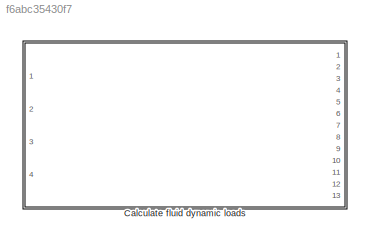
MODEL slx_f6abc35430f7
KIND library
CONFIG AbsTol = auto
CONFIG EnableMultiTasking = off
CONFIG FixedStep = auto
CONFIG MaxStep = auto
CONFIG MinStep = auto
CONFIG RelTol = 1e-3
CONFIG SampleTimeConstraint = Unconstrained
CONFIG Solver = VariableStepAuto
CONFIG SolverName = VariableStepAuto
CONFIG StartTime = 0.0
CONFIG StopTime = 10.0
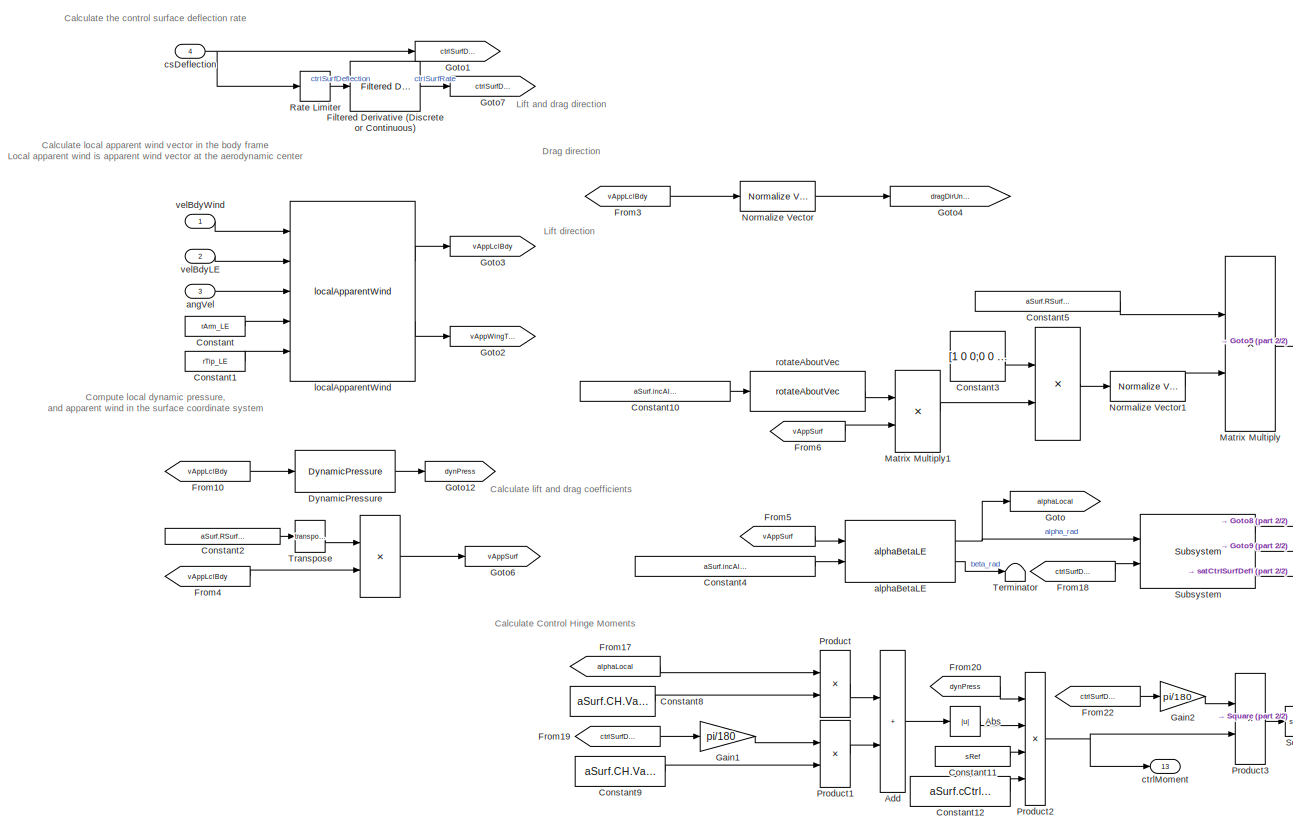
[diagram: Calculate fluid dynamic loads - part 1/2, center side, full height]
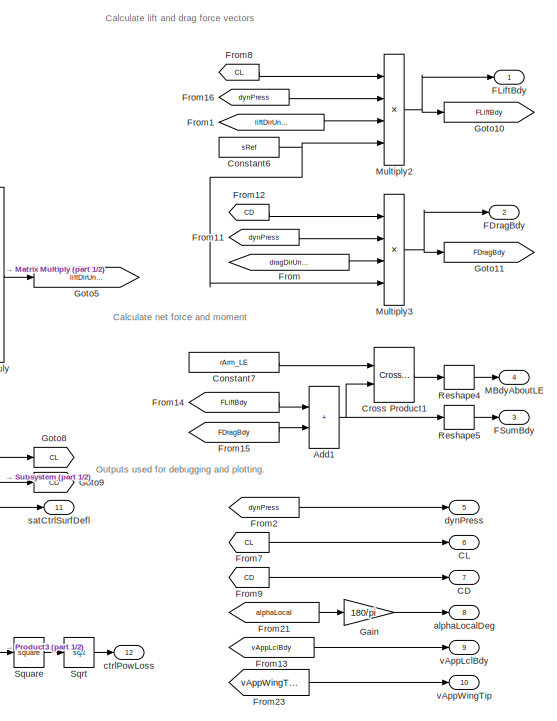
[diagram: Calculate fluid dynamic loads - part 2/2, right side, full height]
BLOCK [SubSystem] Calculate fluid dynamic loads
  Ports = [4, 13]
  RequestExecContextInheritance = off
BLOCK [Product] Calculate fluid dynamic loads/ 
  Multiplication = Matrix(*)
  Ports = [2, 1]
BLOCK [Product] Calculate fluid dynamic loads/  
  Multiplication = Matrix(*)
  Ports = [2, 1]
BLOCK [Abs] Calculate fluid dynamic loads/Abs
  SaturateOnIntegerOverflow = off
BLOCK [Sum] Calculate fluid dynamic loads/Add
  IconShape = rectangular
  Ports = [2, 1]
BLOCK [Sum] Calculate fluid dynamic loads/Add1
  IconShape = rectangular
  Ports = [2, 1]
BLOCK [Outport] Calculate fluid dynamic loads/CD
  Port = 7
  VectorParamsAs1DForOutWhenUnconnected = off
BLOCK [Outport] Calculate fluid dynamic loads/CL
  Port = 6
  VectorParamsAs1DForOutWhenUnconnected = off
BLOCK [Constant] Calculate fluid dynamic loads/Constant
  Value = rArm_LE
  VectorParams1D = off
BLOCK [Constant] Calculate fluid dynamic loads/Constant1
  Value = rTip_LE
  VectorParams1D = off
BLOCK [Constant] Calculate fluid dynamic loads/Constant10
  Value = aSurf.incAlphaUnitVecSurf.Value
  VectorParams1D = off
BLOCK [Constant] Calculate fluid dynamic loads/Constant11
  Value = sRef
BLOCK [Constant] Calculate fluid dynamic loads/Constant12
  Value = aSurf.cCtrlSurf.Value
BLOCK [Constant] Calculate fluid dynamic loads/Constant2
  Value = aSurf.RSurf2Bdy.Value
  VectorParams1D = off
BLOCK [Constant] Calculate fluid dynamic loads/Constant3
  Value = [1 0 0;0 0 0;0 0 1]
  VectorParams1D = off
BLOCK [Constant] Calculate fluid dynamic loads/Constant4
  Value = aSurf.incAlphaUnitVecSurf.Value
  VectorParams1D = off
BLOCK [Constant] Calculate fluid dynamic loads/Constant5
  Value = aSurf.RSurf2Bdy.Value
  VectorParams1D = off
BLOCK [Constant] Calculate fluid dynamic loads/Constant6
  Value = sRef
BLOCK [Constant] Calculate fluid dynamic loads/Constant7
  Value = rArm_LE
  VectorParams1D = off
BLOCK [Constant] Calculate fluid dynamic loads/Constant8
  Value = aSurf.CH.Value(1)
BLOCK [Constant] Calculate fluid dynamic loads/Constant9
  Value = aSurf.CH.Value(2)
BLOCK [Reference] Calculate fluid dynamic loads/Cross Product1  REF=vrlib/Utilities/Cross Product
  Ports = [2, 1]
  SourceBlock = vrlib/Utilities/Cross Product
  SourceProductBaseCode = SL
  SourceType = Cross Product
BLOCK [Reference] Calculate fluid dynamic loads/DynamicPressure  REF=dynamicPressure_ul/DynamicPressure
  Ports = [1, 1]
  SourceBlock = dynamicPressure_ul/DynamicPressure
BLOCK [Outport] Calculate fluid dynamic loads/FDragBdy
  Port = 2
  VectorParamsAs1DForOutWhenUnconnected = off
BLOCK [Outport] Calculate fluid dynamic loads/FLiftBdy
  VectorParamsAs1DForOutWhenUnconnected = off
BLOCK [Outport] Calculate fluid dynamic loads/FSumBdy
  Port = 3
  VectorParamsAs1DForOutWhenUnconnected = off
BLOCK [Reference] Calculate fluid dynamic loads/Filtered Derivative (Discrete or Continuous)  REF=eeGeneralControl/Filtered Derivative
(Discrete or Continuous)
  Ports = [1, 1]
  SourceBlock = eeGeneralControl/Filtered Derivative\n(Discrete or Continuous)
  SourceProductBaseCode = PS
  SourceType = Filtered Derivative (Discrete or Continuous)
BLOCK [From] Calculate fluid dynamic loads/From
  GotoTag = dragDirUnitVecBdy
BLOCK [From] Calculate fluid dynamic loads/From1
  GotoTag = liftDirUnitVecBdy
BLOCK [From] Calculate fluid dynamic loads/From10
  GotoTag = vAppLclBdy
BLOCK [From] Calculate fluid dynamic loads/From11
  GotoTag = dynPress
BLOCK [From] Calculate fluid dynamic loads/From12
  GotoTag = CD
BLOCK [From] Calculate fluid dynamic loads/From13
  GotoTag = vAppLclBdy
BLOCK [From] Calculate fluid dynamic loads/From14
  GotoTag = FLiftBdy
BLOCK [From] Calculate fluid dynamic loads/From15
  GotoTag = FDragBdy
BLOCK [From] Calculate fluid dynamic loads/From16
  GotoTag = dynPress
BLOCK [From] Calculate fluid dynamic loads/From17
  GotoTag = alphaLocal
BLOCK [From] Calculate fluid dynamic loads/From18
  GotoTag = ctrlSurfDefl
BLOCK [From] Calculate fluid dynamic loads/From19
  GotoTag = ctrlSurfDefl
BLOCK [From] Calculate fluid dynamic loads/From2
  GotoTag = dynPress
BLOCK [From] Calculate fluid dynamic loads/From20
  GotoTag = dynPress
BLOCK [From] Calculate fluid dynamic loads/From21
  GotoTag = alphaLocal
BLOCK [From] Calculate fluid dynamic loads/From22
  GotoTag = ctrlSurfDeflRate
BLOCK [From] Calculate fluid dynamic loads/From23
  GotoTag = vAppWingTip
BLOCK [From] Calculate fluid dynamic loads/From3
  GotoTag = vAppLclBdy
BLOCK [From] Calculate fluid dynamic loads/From4
  GotoTag = vAppLclBdy
BLOCK [From] Calculate fluid dynamic loads/From5
  GotoTag = vAppSurf
BLOCK [From] Calculate fluid dynamic loads/From6
  GotoTag = vAppSurf
BLOCK [From] Calculate fluid dynamic loads/From7
  GotoTag = CL
BLOCK [From] Calculate fluid dynamic loads/From8
  GotoTag = CL
BLOCK [From] Calculate fluid dynamic loads/From9
  GotoTag = CD
BLOCK [Gain] Calculate fluid dynamic loads/Gain
  Gain = 180/pi
BLOCK [Gain] Calculate fluid dynamic loads/Gain1
  Gain = pi/180
BLOCK [Gain] Calculate fluid dynamic loads/Gain2
  Gain = pi/180
BLOCK [Goto] Calculate fluid dynamic loads/Goto
  GotoTag = alphaLocal
BLOCK [Goto] Calculate fluid dynamic loads/Goto1
  GotoTag = ctrlSurfDefl
BLOCK [Goto] Calculate fluid dynamic loads/Goto10
  GotoTag = FLiftBdy
BLOCK [Goto] Calculate fluid dynamic loads/Goto11
  GotoTag = FDragBdy
BLOCK [Goto] Calculate fluid dynamic loads/Goto12
  GotoTag = dynPress
BLOCK [Goto] Calculate fluid dynamic loads/Goto2
  GotoTag = vAppWingTip
BLOCK [Goto] Calculate fluid dynamic loads/Goto3
  GotoTag = vAppLclBdy
BLOCK [Goto] Calculate fluid dynamic loads/Goto4
  GotoTag = dragDirUnitVecBdy
BLOCK [Goto] Calculate fluid dynamic loads/Goto5
  GotoTag = liftDirUnitVecBdy
BLOCK [Goto] Calculate fluid dynamic loads/Goto6
  GotoTag = vAppSurf
BLOCK [Goto] Calculate fluid dynamic loads/Goto7
  GotoTag = ctrlSurfDeflRate
BLOCK [Goto] Calculate fluid dynamic loads/Goto8
  GotoTag = CL
BLOCK [Goto] Calculate fluid dynamic loads/Goto9
  GotoTag = CD
BLOCK [Outport] Calculate fluid dynamic loads/MBdyAboutLE
  Port = 4
  PortDimensions = [3 1]
  VectorParamsAs1DForOutWhenUnconnected = off
BLOCK [Product] Calculate fluid dynamic loads/Matrix Multiply
  Multiplication = Matrix(*)
  Ports = [2, 1]
BLOCK [Product] Calculate fluid dynamic loads/Matrix Multiply1
  Multiplication = Matrix(*)
  Ports = [2, 1]
BLOCK [Product] Calculate fluid dynamic loads/Multiply2
  Inputs = 4
  Ports = [4, 1]
BLOCK [Product] Calculate fluid dynamic loads/Multiply3
  Inputs = 4
  Ports = [4, 1]
BLOCK [Reference] Calculate fluid dynamic loads/Normalize Vector  REF=vrlib/Utilities/Normalize Vector
  Ports = [1, 1]
  SourceBlock = vrlib/Utilities/Normalize Vector
  SourceProductBaseCode = SL
  SourceType = Normalize Vector
BLOCK [Reference] Calculate fluid dynamic loads/Normalize Vector1  REF=vrlib/Utilities/Normalize Vector
  Ports = [1, 1]
  SourceBlock = vrlib/Utilities/Normalize Vector
  SourceProductBaseCode = SL
  SourceType = Normalize Vector
BLOCK [Product] Calculate fluid dynamic loads/Product
  Ports = [2, 1]
BLOCK [Product] Calculate fluid dynamic loads/Product1
  Ports = [2, 1]
BLOCK [Product] Calculate fluid dynamic loads/Product2
  Inputs = 4
  Ports = [4, 1]
BLOCK [Product] Calculate fluid dynamic loads/Product3
  Ports = [2, 1]
BLOCK [RateLimiter] Calculate fluid dynamic loads/Rate Limiter
  FallingSlewLimit = -aSurf.maxCtrlDefSpeed.Value
  RisingSlewLimit = aSurf.maxCtrlDefSpeed.Value
  SampleTimeMode = inherited
BLOCK [Reshape] Calculate fluid dynamic loads/Reshape4
  OutputDimensionality = Column vector (2-D)
  Ports = [1, 1]
BLOCK [Reshape] Calculate fluid dynamic loads/Reshape5
  OutputDimensionality = Column vector (2-D)
  Ports = [1, 1]
BLOCK [Sqrt] Calculate fluid dynamic loads/Sqrt
BLOCK [Math] Calculate fluid dynamic loads/Square
  Operator = square
  Ports = [1, 1]
BLOCK [Reference] Calculate fluid dynamic loads/Subsystem  REF=Copy_of_clAndCdCalculator_cl/Subsystem
  Ports = [2, 3]
  SourceBlock = Copy_of_clAndCdCalculator_cl/Subsystem
BLOCK [Terminator] Calculate fluid dynamic loads/Terminator
BLOCK [Math] Calculate fluid dynamic loads/Transpose
  Operator = transpose
  Ports = [1, 1]
  SignedPower = on
BLOCK [Reference] Calculate fluid dynamic loads/alphaBetaLE  REF=alphaBetaLE_ul/alphaBetaLE
  Ports = [2, 2]
  SourceBlock = alphaBetaLE_ul/alphaBetaLE
  SourceType = SubSystem
BLOCK [Outport] Calculate fluid dynamic loads/alphaLocalDeg
  Port = 8
  VectorParamsAs1DForOutWhenUnconnected = off
BLOCK [Inport] Calculate fluid dynamic loads/angVel
  Port = 3
BLOCK [Inport] Calculate fluid dynamic loads/csDeflection
  Port = 4
BLOCK [Outport] Calculate fluid dynamic loads/ctrlMoment
  Port = 13
BLOCK [Outport] Calculate fluid dynamic loads/ctrlPowLoss
  Port = 12
BLOCK [Outport] Calculate fluid dynamic loads/dynPress
  Port = 5
  VectorParamsAs1DForOutWhenUnconnected = off
BLOCK [Reference] Calculate fluid dynamic loads/localApparentWind  REF=localApparentWind_ul/localApparentWind
  Ports = [5, 2]
  SourceBlock = localApparentWind_ul/localApparentWind
  SourceType = SubSystem
BLOCK [Reference] Calculate fluid dynamic loads/rotateAboutVec  REF=rotateAboutVec/rotateAboutVec
  Ports = [1, 1]
  SourceBlock = rotateAboutVec/rotateAboutVec
BLOCK [Outport] Calculate fluid dynamic loads/satCtrlSurfDefl
  Port = 11
BLOCK [Outport] Calculate fluid dynamic loads/vAppLclBdy
  Port = 9
  VectorParamsAs1DForOutWhenUnconnected = off
BLOCK [Outport] Calculate fluid dynamic loads/vAppWingTip
  Port = 10
  VectorParamsAs1DForOutWhenUnconnected = off
BLOCK [Inport] Calculate fluid dynamic loads/velBdyLE
  Port = 2
BLOCK [Inport] Calculate fluid dynamic loads/velBdyWind
ANNOTATION Calculate fluid dynamic loads: Calculate Control Hinge Moments
ANNOTATION Calculate fluid dynamic loads: Calculate lift and drag coefficients
ANNOTATION Calculate fluid dynamic loads: Calculate lift and drag force vectors
ANNOTATION Calculate fluid dynamic loads: Calculate local apparent wind vector in the body frame Local apparent wind is apparent wind vector at the aerodynamic center
ANNOTATION Calculate fluid dynamic loads: Calculate net force and moment
ANNOTATION Calculate fluid dynamic loads: Calculate the control surface deflection rate
ANNOTATION Calculate fluid dynamic loads: Compute local dynamic pressure, and apparent wind in the surface coordinate system
ANNOTATION Calculate fluid dynamic loads: Drag direction
ANNOTATION Calculate fluid dynamic loads: Lift and drag direction
ANNOTATION Calculate fluid dynamic loads: Lift direction
ANNOTATION Calculate fluid dynamic loads: Outputs used for debugging and plotting.
LINE Calculate fluid dynamic loads/  :1 -> Calculate fluid dynamic loads/Goto6:1
LINE Calculate fluid dynamic loads/ :1 -> Calculate fluid dynamic loads/Normalize Vector1:1
LINE Calculate fluid dynamic loads/Abs:1 -> Calculate fluid dynamic loads/Product2:2
NET Calculate fluid dynamic loads/Add1:1 -> Calculate fluid dynamic loads/Cross Product1:2, Calculate fluid dynamic loads/Reshape5:1
LINE Calculate fluid dynamic loads/Add:1 -> Calculate fluid dynamic loads/Abs:1
LINE Calculate fluid dynamic loads/Constant10:1 -> Calculate fluid dynamic loads/rotateAboutVec:1
LINE Calculate fluid dynamic loads/Constant11:1 -> Calculate fluid dynamic loads/Product2:3
LINE Calculate fluid dynamic loads/Constant12:1 -> Calculate fluid dynamic loads/Product2:4
LINE Calculate fluid dynamic loads/Constant1:1 -> Calculate fluid dynamic loads/localApparentWind:5
LINE Calculate fluid dynamic loads/Constant2:1 -> Calculate fluid dynamic loads/Transpose:1
LINE Calculate fluid dynamic loads/Constant3:1 -> Calculate fluid dynamic loads/ :1
LINE Calculate fluid dynamic loads/Constant4:1 -> Calculate fluid dynamic loads/alphaBetaLE:2
LINE Calculate fluid dynamic loads/Constant5:1 -> Calculate fluid dynamic loads/Matrix Multiply:1
NET Calculate fluid dynamic loads/Constant6:1 -> Calculate fluid dynamic loads/Multiply2:4, Calculate fluid dynamic loads/Multiply3:4
LINE Calculate fluid dynamic loads/Constant7:1 -> Calculate fluid dynamic loads/Cross Product1:1
LINE Calculate fluid dynamic loads/Constant8:1 -> Calculate fluid dynamic loads/Product:2
LINE Calculate fluid dynamic loads/Constant9:1 -> Calculate fluid dynamic loads/Product1:2
LINE Calculate fluid dynamic loads/Constant:1 -> Calculate fluid dynamic loads/localApparentWind:4
LINE Calculate fluid dynamic loads/Cross Product1:1 -> Calculate fluid dynamic loads/Reshape4:1
LINE Calculate fluid dynamic loads/DynamicPressure:1 -> Calculate fluid dynamic loads/Goto12:1
LINE Calculate fluid dynamic loads/Filtered Derivative (Discrete or Continuous):1 -> Calculate fluid dynamic loads/Goto7:1
LINE Calculate fluid dynamic loads/From10:1 -> Calculate fluid dynamic loads/DynamicPressure:1
LINE Calculate fluid dynamic loads/From11:1 -> Calculate fluid dynamic loads/Multiply3:2
LINE Calculate fluid dynamic loads/From12:1 -> Calculate fluid dynamic loads/Multiply3:1
LINE Calculate fluid dynamic loads/From13:1 -> Calculate fluid dynamic loads/vAppLclBdy:1
LINE Calculate fluid dynamic loads/From14:1 -> Calculate fluid dynamic loads/Add1:1
LINE Calculate fluid dynamic loads/From15:1 -> Calculate fluid dynamic loads/Add1:2
LINE Calculate fluid dynamic loads/From16:1 -> Calculate fluid dynamic loads/Multiply2:2
LINE Calculate fluid dynamic loads/From17:1 -> Calculate fluid dynamic loads/Product:1
LINE Calculate fluid dynamic loads/From18:1 -> Calculate fluid dynamic loads/Subsystem:2
LINE Calculate fluid dynamic loads/From19:1 -> Calculate fluid dynamic loads/Gain1:1
LINE Calculate fluid dynamic loads/From1:1 -> Calculate fluid dynamic loads/Multiply2:3
LINE Calculate fluid dynamic loads/From20:1 -> Calculate fluid dynamic loads/Product2:1
LINE Calculate fluid dynamic loads/From21:1 -> Calculate fluid dynamic loads/Gain:1
LINE Calculate fluid dynamic loads/From22:1 -> Calculate fluid dynamic loads/Gain2:1
LINE Calculate fluid dynamic loads/From23:1 -> Calculate fluid dynamic loads/vAppWingTip:1
LINE Calculate fluid dynamic loads/From2:1 -> Calculate fluid dynamic loads/dynPress:1
LINE Calculate fluid dynamic loads/From3:1 -> Calculate fluid dynamic loads/Normalize Vector:1
LINE Calculate fluid dynamic loads/From4:1 -> Calculate fluid dynamic loads/  :2
LINE Calculate fluid dynamic loads/From5:1 -> Calculate fluid dynamic loads/alphaBetaLE:1
LINE Calculate fluid dynamic loads/From6:1 -> Calculate fluid dynamic loads/Matrix Multiply1:2
LINE Calculate fluid dynamic loads/From7:1 -> Calculate fluid dynamic loads/CL:1
LINE Calculate fluid dynamic loads/From8:1 -> Calculate fluid dynamic loads/Multiply2:1
LINE Calculate fluid dynamic loads/From9:1 -> Calculate fluid dynamic loads/CD:1
LINE Calculate fluid dynamic loads/From:1 -> Calculate fluid dynamic loads/Multiply3:3
LINE Calculate fluid dynamic loads/Gain1:1 -> Calculate fluid dynamic loads/Product1:1
LINE Calculate fluid dynamic loads/Gain2:1 -> Calculate fluid dynamic loads/Product3:1
LINE Calculate fluid dynamic loads/Gain:1 -> Calculate fluid dynamic loads/alphaLocalDeg:1
LINE Calculate fluid dynamic loads/Matrix Multiply1:1 -> Calculate fluid dynamic loads/ :2
LINE Calculate fluid dynamic loads/Matrix Multiply:1 -> Calculate fluid dynamic loads/Goto5:1
NET Calculate fluid dynamic loads/Multiply2:1 -> Calculate fluid dynamic loads/FLiftBdy:1, Calculate fluid dynamic loads/Goto10:1
NET Calculate fluid dynamic loads/Multiply3:1 -> Calculate fluid dynamic loads/FDragBdy:1, Calculate fluid dynamic loads/Goto11:1
LINE Calculate fluid dynamic loads/Normalize Vector1:1 -> Calculate fluid dynamic loads/Matrix Multiply:2
LINE Calculate fluid dynamic loads/Normalize Vector:1 -> Calculate fluid dynamic loads/Goto4:1
LINE Calculate fluid dynamic loads/Product1:1 -> Calculate fluid dynamic loads/Add:2
NET Calculate fluid dynamic loads/Product2:1 -> Calculate fluid dynamic loads/Product3:2, Calculate fluid dynamic loads/ctrlMoment:1
LINE Calculate fluid dynamic loads/Product3:1 -> Calculate fluid dynamic loads/Square:1
LINE Calculate fluid dynamic loads/Product:1 -> Calculate fluid dynamic loads/Add:1
LINE Calculate fluid dynamic loads/Rate Limiter:1 -> Calculate fluid dynamic loads/Filtered Derivative (Discrete or Continuous):1
LINE Calculate fluid dynamic loads/Reshape4:1 -> Calculate fluid dynamic loads/MBdyAboutLE:1
LINE Calculate fluid dynamic loads/Reshape5:1 -> Calculate fluid dynamic loads/FSumBdy:1
LINE Calculate fluid dynamic loads/Sqrt:1 -> Calculate fluid dynamic loads/ctrlPowLoss:1
LINE Calculate fluid dynamic loads/Square:1 -> Calculate fluid dynamic loads/Sqrt:1
LINE Calculate fluid dynamic loads/Subsystem:1 -> Calculate fluid dynamic loads/Goto8:1
LINE Calculate fluid dynamic loads/Subsystem:2 -> Calculate fluid dynamic loads/Goto9:1
LINE Calculate fluid dynamic loads/Subsystem:3 -> Calculate fluid dynamic loads/satCtrlSurfDefl:1
LINE Calculate fluid dynamic loads/Transpose:1 -> Calculate fluid dynamic loads/  :1
NET Calculate fluid dynamic loads/alphaBetaLE:1 -> Calculate fluid dynamic loads/Goto:1, Calculate fluid dynamic loads/Subsystem:1
LINE Calculate fluid dynamic loads/alphaBetaLE:2 -> Calculate fluid dynamic loads/Terminator:1
LINE Calculate fluid dynamic loads/angVel:1 -> Calculate fluid dynamic loads/localApparentWind:3
NET Calculate fluid dynamic loads/csDeflection:1 -> Calculate fluid dynamic loads/Goto1:1, Calculate fluid dynamic loads/Rate Limiter:1
LINE Calculate fluid dynamic loads/localApparentWind:1 -> Calculate fluid dynamic loads/Goto3:1
LINE Calculate fluid dynamic loads/localApparentWind:2 -> Calculate fluid dynamic loads/Goto2:1
LINE Calculate fluid dynamic loads/rotateAboutVec:1 -> Calculate fluid dynamic loads/Matrix Multiply1:1
LINE Calculate fluid dynamic loads/velBdyLE:1 -> Calculate fluid dynamic loads/localApparentWind:2
LINE Calculate fluid dynamic loads/velBdyWind:1 -> Calculate fluid dynamic loads/localApparentWind:1
note: NET lines group one-source signal fan-out (src -> all destinations, sorted); 1:1 wires keep LINE
